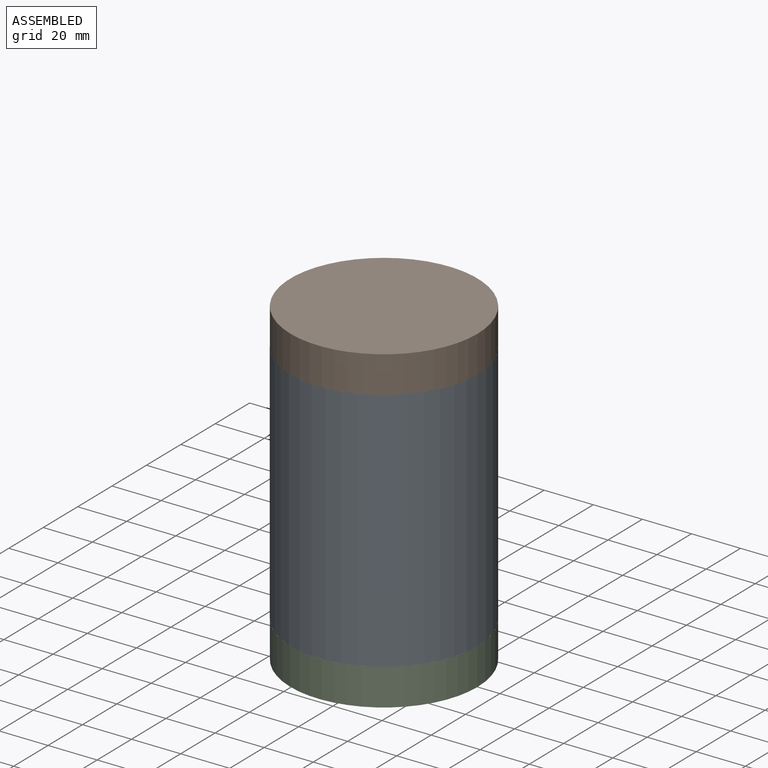
[diagram: assembled view]
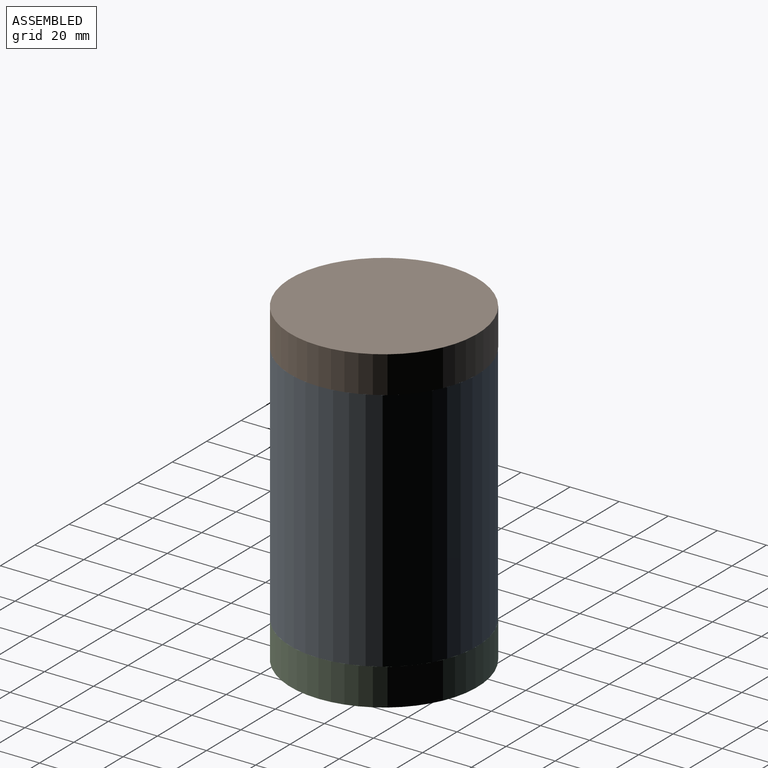
[diagram: assembled view, second angle]
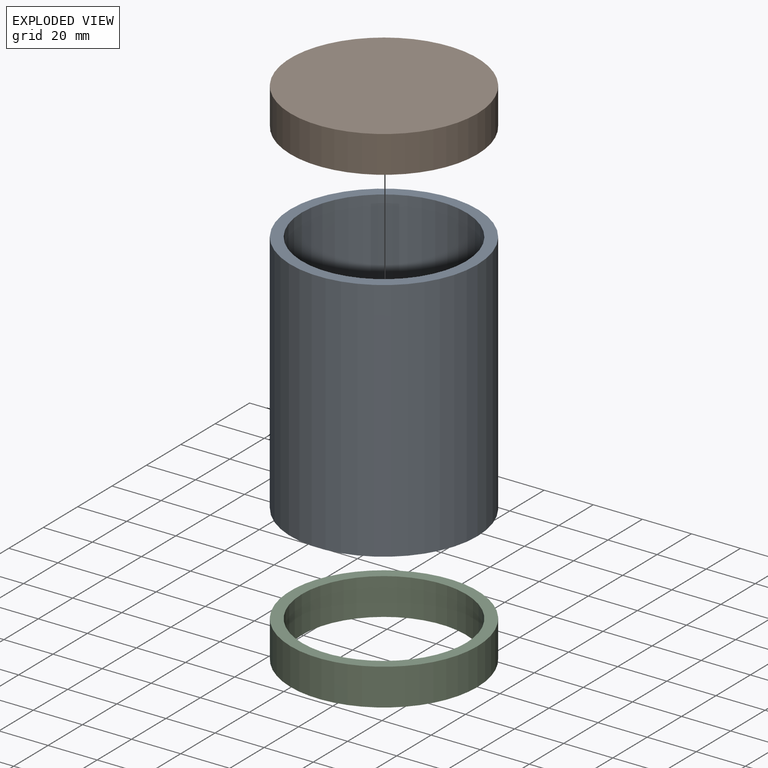
[diagram: exploded view]
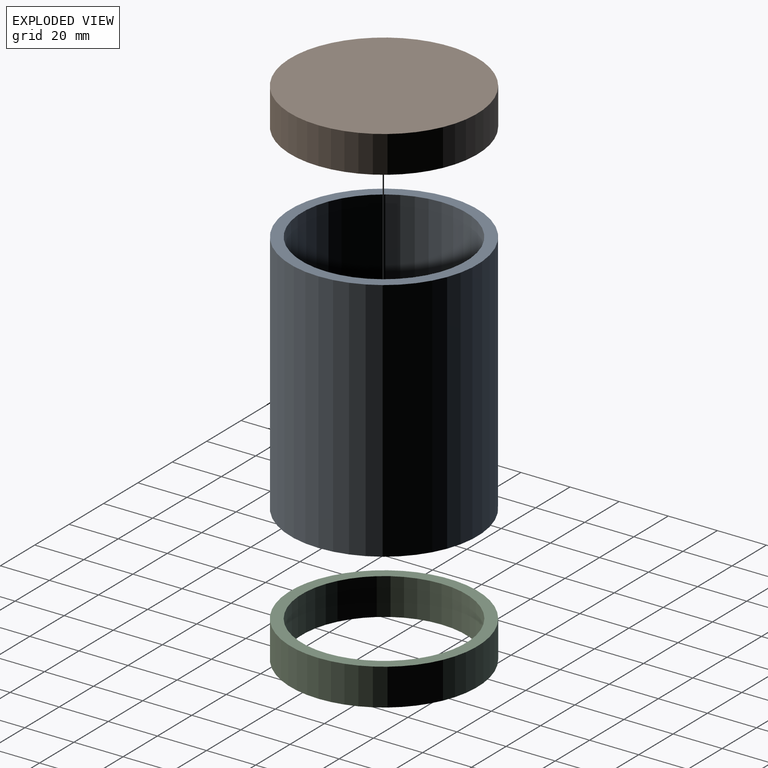
[diagram: exploded view, second angle]
ASSEMBLY  parts=3 mates=2
PART A: 4 faces, bbox 76.2x76.2x100 mm
  f0: cylinder r=38.1mm len=100mm, axis (0,0,1), area 23938.9mm2, adj f1,f2
  f1: plane 76.2x76.2mm, normal (0,0,-1), area 1036.8mm2, adj f0,f3
  f2: plane 76.2x76.2mm, normal (0,0,1), area 1036.8mm2, adj f0,f3
  f3: cylinder r=33.49mm len=100mm, axis (0,0,1), area 21042.3mm2, adj f1,f2
PART B: 3 faces, bbox 76.2x76.2x15 mm
  f0: cylinder r=38.1mm len=76.2mm, axis (0,0,-1), area 3593.6mm2, adj f1,f2
  f1: plane 76.2x76.2mm, normal (0,0,1), area 4560.4mm2, adj f0
  f2: plane 76.2x76.2mm, normal (0,0,-1), area 4560.4mm2, adj f0
PART C: 4 faces, bbox 76.2x76.2x15 mm
  f0: cylinder r=38.1mm len=76.2mm, axis (0,0,-1), area 3593.6mm2, adj f1,f2
  f1: plane 76.2x76.2mm, normal (0,0,1), area 1036.8mm2, adj f0,f3
  f2: plane 76.2x76.2mm, normal (0,0,-1), area 1036.8mm2, adj f0,f3
  f3: cylinder r=33.49mm len=66.98mm, axis (0,0,1), area 3158.7mm2, adj f1,f2
PLACE A rot(axis=(0,-1,0),180deg) t=(-153.68,-19.29,61.88)mm
PLACE B rot(axis=(0,0,1),0deg) t=(-153.68,-19.29,161.88)mm
PLACE C rot(axis=(0,0,1),0deg) t=(-153.68,-19.29,46.87)mm
MATE fastened B.f0 <-> A.f0  axis (0,0,1) through (-153.68,-19.29,176.89)mm
MATE fastened C.f0 <-> A.f0  axis (0,0,-1) through (-153.68,-19.29,46.87)mm
